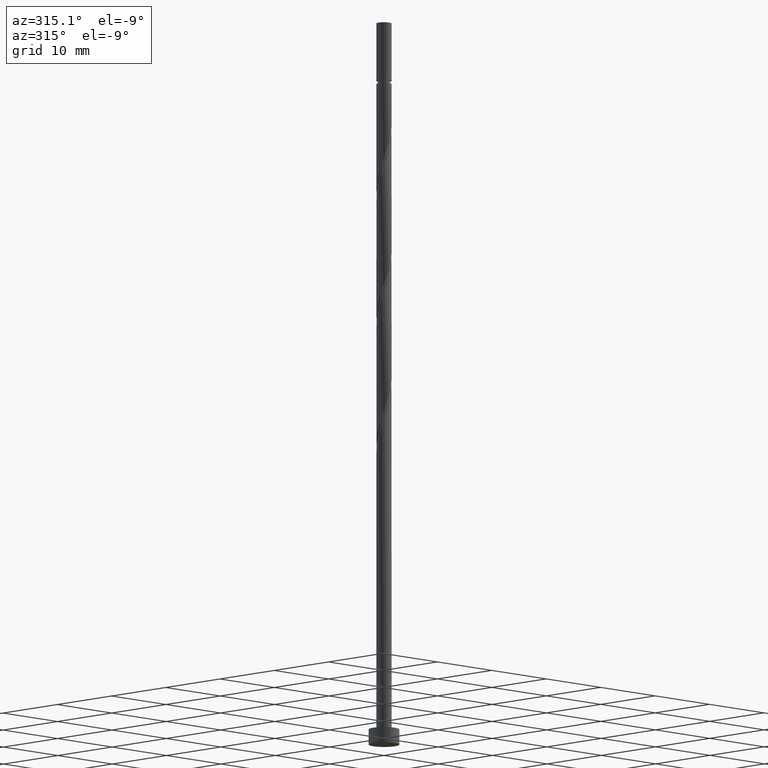
[diagram: clean part render]
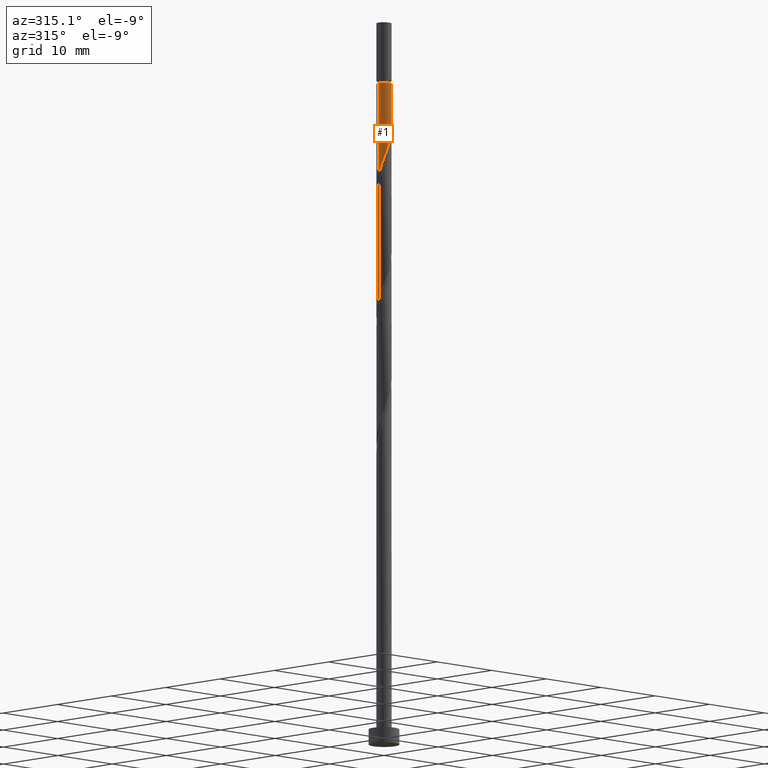
[diagram: same view with one face highlighted and labeled with its STEP entity id]
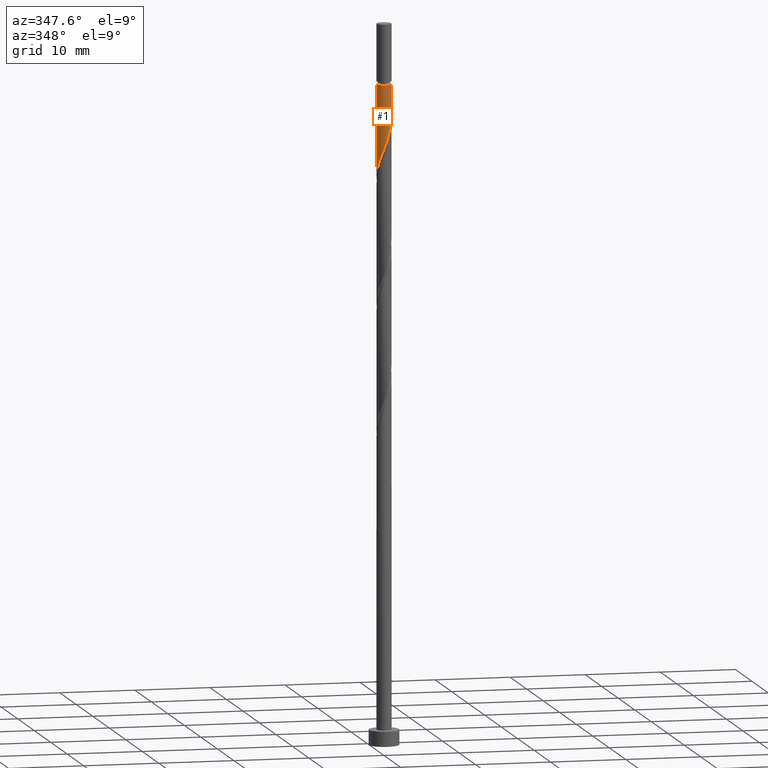
[diagram: same view with one face highlighted and labeled with its STEP entity id]
A machine part, auxiliary view. The second image highlights one B-rep face of the part: STEP entity #1.
A second angle (auxiliary view) of the same face is appended — the face is thin or edge-on in the first view.
In plain terms, the highlighted cylindrical surface (edge-blend (fillet) strip) has radius 1 mm, axis along (-0, -0, -1).
Its self-contained STEP definition (entity closure, byte-faithful):
#1 = ADVANCED_FACE ( 'NONE', ( #1201 ), #178, .T. ) ;
#20 = CARTESIAN_POINT ( 'NONE',  ( 1.000000000000000000, 1.224646799147352961E-16, 95.00000000000000000 ) ) ;
#76 = CARTESIAN_POINT ( 'NONE',  ( -0.5221762109439079813, -0.8528376192009045065, 77.75900118861646604 ) ) ;
#87 = EDGE_CURVE ( 'NONE', #854, #602, #611, .T. ) ;
#99 = VECTOR ( 'NONE', #914, 1000.000000000000000 ) ;
#111 = VECTOR ( 'NONE', #271, 1000.000000000000000 ) ;
#164 = CARTESIAN_POINT ( 'NONE',  ( -1.000000000000001998, 9.025376639305174605E-13, 75.04911533619541331 ) ) ;
#178 = CYLINDRICAL_SURFACE ( 'NONE', #716, 1.000000000000000000 ) ;
#235 = VERTEX_POINT ( 'NONE', #450 ) ;
#241 = CARTESIAN_POINT ( 'NONE',  ( 0.8659940141538792213, -0.5302316206861090730, 81.92566785528312323 ) ) ;
#262 = CARTESIAN_POINT ( 'NONE',  ( 1.000000000000001332, 1.224646799147354686E-16, 87.01826044787571846 ) ) ;
#267 = CIRCLE ( 'NONE', #1097, 1.000000000000001332 ) ;
#271 = DIRECTION ( 'NONE',  ( -0.000000000000000000, -0.000000000000000000, -1.000000000000000000 ) ) ;
#304 = ORIENTED_EDGE ( 'NONE', *, *, #87, .T. ) ;
#320 = CARTESIAN_POINT ( 'NONE',  ( -1.000000000000149880, -0.1630543718200166692, 75.47903484856220757 ) ) ;
#330 = DIRECTION ( 'NONE',  ( -1.000000000000000000, 0.000000000000000000, 0.000000000000000000 ) ) ;
#333 = CARTESIAN_POINT ( 'NONE',  ( -1.000000000000001998, 9.025376639305174605E-13, 75.04911533619541331 ) ) ;
#400 = ORIENTED_EDGE ( 'NONE', *, *, #664, .F. ) ;
#425 = CARTESIAN_POINT ( 'NONE',  ( -0.6725544933721987473, -0.7607638645273786526, 77.29603822565348992 ) ) ;
#450 = CARTESIAN_POINT ( 'NONE',  ( 1.000000000000001776, 1.239934223392170764E-15, 83.38244866953114354 ) ) ;
#451 = CARTESIAN_POINT ( 'NONE',  ( 0.9305560469009561686, -0.3661494825560581146, 82.38863081824611356 ) ) ;
#510 = CARTESIAN_POINT ( 'NONE',  ( 0.1481832699744045356, -0.9889599175394805375, 79.61085304046831368 ) ) ;
#519 = DIRECTION ( 'NONE',  ( -1.000000000000000000, 0.000000000000000000, 0.000000000000000000 ) ) ;
#589 = CARTESIAN_POINT ( 'NONE',  ( 0.9996671490029767071, -0.02579905432887409297, 83.31455674417200896 ) ) ;
#602 = VERTEX_POINT ( 'NONE', #164 ) ;
#611 = LINE ( 'NONE', #845, #111 ) ;
#619 = CARTESIAN_POINT ( 'NONE',  ( -0.02619704632702489142, -1.015088626125574711, 79.14789007750535177 ) ) ;
#621 = DIRECTION ( 'NONE',  ( -0.000000000000000000, -0.000000000000000000, -1.000000000000000000 ) ) ;
#641 = CARTESIAN_POINT ( 'NONE',  ( 0.000000000000000000, 0.000000000000000000, 95.00000000000000000 ) ) ;
#664 = EDGE_CURVE ( 'NONE', #1307, #235, #707, .T. ) ;
#670 = EDGE_CURVE ( 'NONE', #235, #602, #830, .T. ) ;
#677 = CARTESIAN_POINT ( 'NONE',  ( -1.000000000000001332, 0.000000000000000000, 87.01826044787571846 ) ) ;
#707 = LINE ( 'NONE', #20, #99 ) ;
#716 = AXIS2_PLACEMENT_3D ( 'NONE', #641, #621, #519 ) ;
#735 = CARTESIAN_POINT ( 'NONE',  ( 0.3225635862758333139, -0.9628312089533865858, 80.07381600343124717 ) ) ;
#772 = CARTESIAN_POINT ( 'NONE',  ( -0.7823727769265516052, -0.6228104349834227005, 76.83307526269055643 ) ) ;
#830 =( BOUNDED_CURVE ( )  B_SPLINE_CURVE ( 2, ( #1264, #1139, #589, #1375, #451, #241, #1296, #837, #1175, #735, #510, #619, #1341, #1079, #76, #425, #772, #1365, #1459, #320, #333 ),
 .UNSPECIFIED., .F., .T. ) 
 B_SPLINE_CURVE_WITH_KNOTS ( ( 3, 2, 2, 2, 2, 2, 2, 2, 2, 2, 3 ),
 ( 0.3045248053855291182, 0.3055555555555555802, 0.3194444444444444198, 0.3333333333333333148, 0.3472222222222222099, 0.3611111111111111049, 0.3750000000000000000, 0.3888888888888888951, 0.4027777777777777901, 0.4166666666666666852, 0.4295248053855654780 ),
 .UNSPECIFIED. ) 
 CURVE ( )  GEOMETRIC_REPRESENTATION_ITEM ( )  RATIONAL_B_SPLINE_CURVE ( ( 0.9071930855141306926, 0.9080659294509783042, 0.9090909090909183865, 0.8952797754656529605, 0.9090909090909183865, 0.8952797754656529605, 0.9090909090909183865, 0.8952797754656529605, 0.9090909090909183865, 0.8952797754656529605, 0.9090909090909183865, 0.8952797754656529605, 0.9090909090909183865, 0.8952797754656529605, 0.9090909090909183865, 0.8952797754656529605, 0.9090909090909183865, 0.8952797754656529605, 0.9090909090909183865, 0.8963047551055568496, 0.9071930855141923100 ) ) 
 REPRESENTATION_ITEM ( '' )  );
#837 = CARTESIAN_POINT ( 'NONE',  ( 0.6324182898423037491, -0.7944421381061700371, 80.99974192935719941 ) ) ;
#845 = CARTESIAN_POINT ( 'NONE',  ( -1.000000000000000000, 0.000000000000000000, 95.00000000000000000 ) ) ;
#854 = VERTEX_POINT ( 'NONE', #677 ) ;
#910 = DIRECTION ( 'NONE',  ( -0.000000000000000000, -0.000000000000000000, -1.000000000000000000 ) ) ;
#914 = DIRECTION ( 'NONE',  ( -0.000000000000000000, -0.000000000000000000, -1.000000000000000000 ) ) ;
#1025 = EDGE_LOOP ( 'NONE', ( #400, #1082, #304, #1221 ) ) ;
#1079 = CARTESIAN_POINT ( 'NONE',  ( -0.3717979285156171043, -0.9449113738744301383, 78.22196415157941374 ) ) ;
#1082 = ORIENTED_EDGE ( 'NONE', *, *, #1093, .T. ) ;
#1093 = EDGE_CURVE ( 'NONE', #1307, #854, #267, .T. ) ;
#1097 = AXIS2_PLACEMENT_3D ( 'NONE', #1357, #910, #330 ) ;
#1139 = CARTESIAN_POINT ( 'NONE',  ( 1.000000000000002220, -0.01290167433201808503, 83.34843129559878605 ) ) ;
#1175 = CARTESIAN_POINT ( 'NONE',  ( 0.4774909380590686703, -0.8786366735297782560, 80.53677896639425171 ) ) ;
#1201 = FACE_OUTER_BOUND ( 'NONE', #1025, .T. ) ;
#1221 = ORIENTED_EDGE ( 'NONE', *, *, #670, .F. ) ;
#1264 = CARTESIAN_POINT ( 'NONE',  ( 1.000000000000001776, 1.239934223392170764E-15, 83.38244866953114354 ) ) ;
#1296 = CARTESIAN_POINT ( 'NONE',  ( 0.7492061519980914852, -0.6623368793961394996, 81.46270489232017553 ) ) ;
#1307 = VERTEX_POINT ( 'NONE', #262 ) ;
#1341 = CARTESIAN_POINT ( 'NONE',  ( -0.1989974874213207845, -0.9800000000000025357, 78.68492711454237565 ) ) ;
#1357 = CARTESIAN_POINT ( 'NONE',  ( 0.000000000000000000, 0.000000000000000000, 87.01826044787571846 ) ) ;
#1365 = CARTESIAN_POINT ( 'NONE',  ( -0.8921910604809041301, -0.4848570054394663043, 76.37011229972756610 ) ) ;
#1375 = CARTESIAN_POINT ( 'NONE',  ( 0.9951180796480328938, -0.2020673444260079332, 82.85159378120904705 ) ) ;
#1459 = CARTESIAN_POINT ( 'NONE',  ( -0.9482036394194125473, -0.3176631206038630917, 75.90714933676460419 ) ) ;